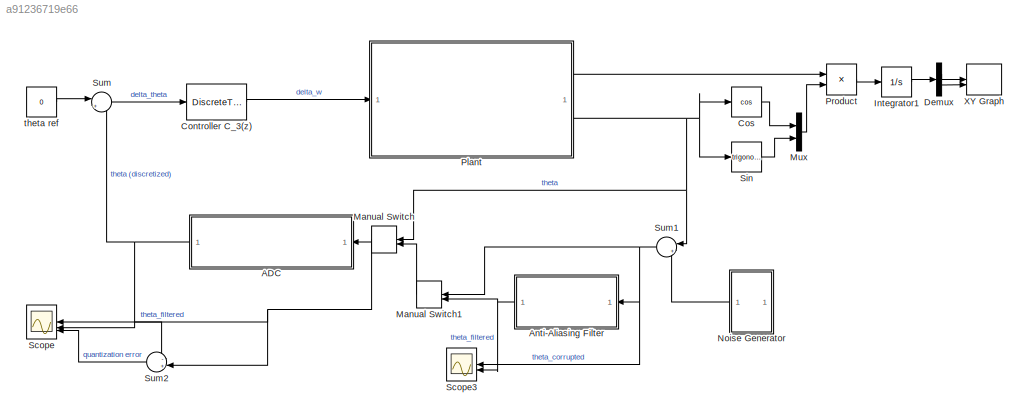
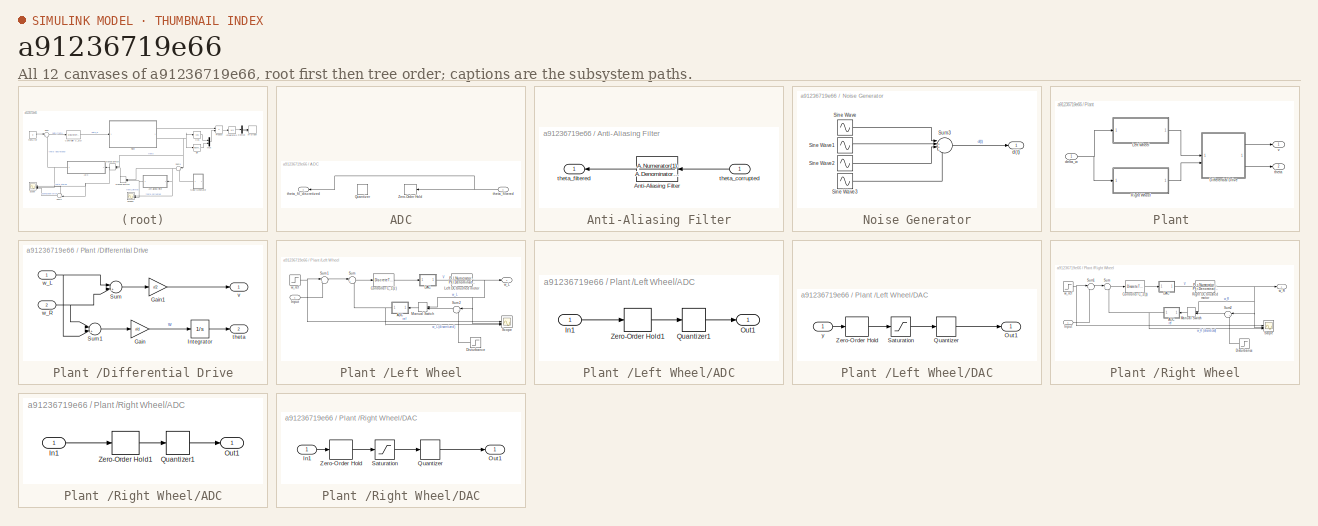
[diagram: thumbnail index - all 12 canvases of the model, root first then tree order]
MODEL slx_a91236719e66
KIND model
CONFIG AbsTol = auto
CONFIG EnableMultiTasking = off
CONFIG FixedStep = auto
CONFIG MaxStep = auto
CONFIG MinStep = auto
CONFIG RelTol = 1e-5
CONFIG SampleTimeConstraint = Unconstrained
CONFIG SolverName = VariableStepAuto
CONFIG StartTime = 0.0
CONFIG StopTime = 10
BLOCK [SubSystem] ADC
BLOCK [Quantizer] ADC/Quantizer
  QuantizationInterval = delta_q3
BLOCK [ZeroOrderHold] ADC/Zero-Order Hold
  SampleTime = Ts
BLOCK [Outport] ADC/theta_fil_discretized
BLOCK [Inport] ADC/theta_filtered
BLOCK [SubSystem] Anti-Aliasing Filter
BLOCK [TransferFcn] Anti-Aliasing Filter/Anti-Aliasing Filter
  Denominator = A.Denominator{1}
  Numerator = A.Numerator{1}
BLOCK [Inport] Anti-Aliasing Filter/theta_corrupted
BLOCK [Outport] Anti-Aliasing Filter/theta_filtered
BLOCK [DiscreteTransferFcn] Controller C_3(z)
  Denominator = D_C3
  InputPortMap = u0
  Numerator = N_C3
BLOCK [Trigonometry] Cos
  Operator = cos
BLOCK [Demux] Demux
  Outputs = 2
BLOCK [Integrator] Integrator1
BLOCK [ManualSwitch] Manual Switch
BLOCK [ManualSwitch] Manual Switch1
BLOCK [Mux] Mux
  DisplayOption = bar
  Inputs = 2
BLOCK [SubSystem] Noise Generator
  NameLocation = top
BLOCK [Sin] Noise Generator/Sine Wave
  Frequency = 5e5
  SampleTime = 0
BLOCK [Sin] Noise Generator/Sine Wave1
  Amplitude = 2
  Frequency = 1e4
  SampleTime = 0
BLOCK [Sin] Noise Generator/Sine Wave2
  Amplitude = -1
  Frequency = 1e6
  SampleTime = 0
BLOCK [Sin] Noise Generator/Sine Wave3
  Amplitude = 0.6
  Frequency = 6e3
  SampleTime = 0
BLOCK [Sum] Noise Generator/Sum3
  Inputs = |++++
BLOCK [Outport] Noise Generator/d(t)
BLOCK [SubSystem] Plant 
BLOCK [SubSystem] Plant /Differential Drive
BLOCK [Gain] Plant /Differential Drive/Gain
  Gain = r/d
BLOCK [Gain] Plant /Differential Drive/Gain1
  Gain = r/2
BLOCK [Integrator] Plant /Differential Drive/Integrator
  InitialCondition = pi/9
BLOCK [Sum] Plant /Differential Drive/Sum
  Inputs = |++|
BLOCK [Sum] Plant /Differential Drive/Sum1
  Inputs = |+-|
BLOCK [Outport] Plant /Differential Drive/theta
  Port = 2
BLOCK [Outport] Plant /Differential Drive/v
BLOCK [Inport] Plant /Differential Drive/w_L
BLOCK [Inport] Plant /Differential Drive/w_R
  Port = 2
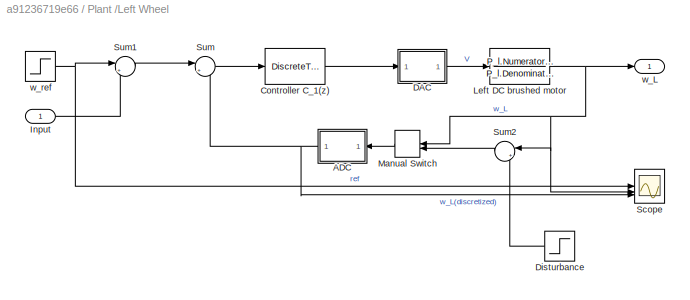
BLOCK [SubSystem] Plant /Left Wheel
BLOCK [SubSystem] Plant /Left Wheel/ADC
BLOCK [Inport] Plant /Left Wheel/ADC/In1
BLOCK [Outport] Plant /Left Wheel/ADC/Out1
BLOCK [Quantizer] Plant /Left Wheel/ADC/Quantizer1
  QuantizationInterval = delta_q2
BLOCK [ZeroOrderHold] Plant /Left Wheel/ADC/Zero-Order Hold1
  SampleTime = Ts
BLOCK [DiscreteTransferFcn] Plant /Left Wheel/Controller C_1(z)
  Denominator = D_C1
  InputPortMap = u0
  Numerator = N_C1
BLOCK [SubSystem] Plant /Left Wheel/DAC
BLOCK [Outport] Plant /Left Wheel/DAC/Out1
BLOCK [Quantizer] Plant /Left Wheel/DAC/Quantizer
  QuantizationInterval = delta_q1
BLOCK [Saturate] Plant /Left Wheel/DAC/Saturation
  LowerLimit = -Vbat
  UpperLimit = Vbat
BLOCK [ZeroOrderHold] Plant /Left Wheel/DAC/Zero-Order Hold
  SampleTime = Ts
BLOCK [Inport] Plant /Left Wheel/DAC/y
BLOCK [Step] Plant /Left Wheel/Disturbance 
  After = 0.005
  SampleTime = 0
  Time = 5
BLOCK [Inport] Plant /Left Wheel/Input
BLOCK [TransferFcn] Plant /Left Wheel/Left DC brushed motor
  Denominator = P_l.Denominator{1}
  Numerator = P_l.Numerator{1}
BLOCK [ManualSwitch] Plant /Left Wheel/Manual Switch
BLOCK [Scope] Plant /Left Wheel/Scope
  Floating = off
  NumInputPorts = 3
  ScopeSpecificationString = Simulink.scopes.TimeScopeBlockCfg('CurrentConfiguration', extmgr.ConfigurationSet(extmgr.Configuration('Core','General UI',true),extmgr.Configuration('Core','Source UI',true),extmgr.Configuration('Sources','WiredSimulink',true),extmgr.Configuration('Visuals','Time Domain',true,'SerializedDisplays',{struct('MinYLimReal','-0.625','MaxYLimReal','5.625','YLabelReal','','MinYLimMag','0.00000','MaxYLimM...<+2703ch>
BLOCK [Sum] Plant /Left Wheel/Sum
  Inputs = |+-
BLOCK [Sum] Plant /Left Wheel/Sum1
  Inputs = |+-
BLOCK [Sum] Plant /Left Wheel/Sum2
  Inputs = |++
  NameLocation = top
BLOCK [Outport] Plant /Left Wheel/w_L
BLOCK [Step] Plant /Left Wheel/w_ref
  After = w_ref
  SampleTime = Ts
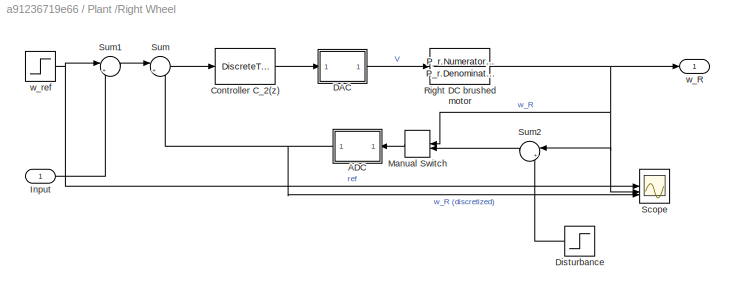
BLOCK [SubSystem] Plant /Right Wheel
BLOCK [SubSystem] Plant /Right Wheel/ADC
BLOCK [Inport] Plant /Right Wheel/ADC/In1
BLOCK [Outport] Plant /Right Wheel/ADC/Out1
BLOCK [Quantizer] Plant /Right Wheel/ADC/Quantizer1
  QuantizationInterval = delta_q2
BLOCK [ZeroOrderHold] Plant /Right Wheel/ADC/Zero-Order Hold1
  SampleTime = Ts
BLOCK [DiscreteTransferFcn] Plant /Right Wheel/Controller C_2(z)
  Denominator = D_C2
  InputPortMap = u0
  Numerator = N_C2
BLOCK [SubSystem] Plant /Right Wheel/DAC
BLOCK [Inport] Plant /Right Wheel/DAC/In1
BLOCK [Outport] Plant /Right Wheel/DAC/Out1
BLOCK [Quantizer] Plant /Right Wheel/DAC/Quantizer
  QuantizationInterval = delta_q1
BLOCK [Saturate] Plant /Right Wheel/DAC/Saturation
  LowerLimit = -Vbat
  UpperLimit = Vbat
BLOCK [ZeroOrderHold] Plant /Right Wheel/DAC/Zero-Order Hold
  SampleTime = Ts
BLOCK [Step] Plant /Right Wheel/Disturbance
  After = 0.001
  SampleTime = 0
  Time = 6
BLOCK [Inport] Plant /Right Wheel/Input
BLOCK [ManualSwitch] Plant /Right Wheel/Manual Switch
BLOCK [TransferFcn] Plant /Right Wheel/Right DC brushed motor
  Denominator = P_r.Denominator{1}
  Numerator = P_r.Numerator{1}
BLOCK [Scope] Plant /Right Wheel/Scope
  Floating = off
  NumInputPorts = 3
  ScopeSpecificationString = Simulink.scopes.TimeScopeBlockCfg('CurrentConfiguration', extmgr.ConfigurationSet(extmgr.Configuration('Core','General UI',true),extmgr.Configuration('Core','Source UI',true),extmgr.Configuration('Sources','WiredSimulink',true),extmgr.Configuration('Visuals','Time Domain',true,'SerializedDisplays',{struct('MinYLimReal','-0.625','MaxYLimReal','5.625','YLabelReal','','MinYLimMag','0.00000','MaxYLimM...<+2677ch>
BLOCK [Sum] Plant /Right Wheel/Sum
  Inputs = |+-
BLOCK [Sum] Plant /Right Wheel/Sum1
  Inputs = |++
BLOCK [Sum] Plant /Right Wheel/Sum2
  Inputs = |++
  NameLocation = top
BLOCK [Outport] Plant /Right Wheel/w_R
BLOCK [Step] Plant /Right Wheel/w_ref
  After = w_ref
  SampleTime = Ts
BLOCK [Inport] Plant /delta_w
BLOCK [Outport] Plant /theta
  Port = 2
BLOCK [Outport] Plant /v
BLOCK [Product] Product
BLOCK [Scope] Scope
  Floating = off
  NumInputPorts = 3
  ScopeSpecificationString = Simulink.scopes.TimeScopeBlockCfg('CurrentConfiguration', extmgr.ConfigurationSet(extmgr.Configuration('Core','General UI',true),extmgr.Configuration('Core','Source UI',true),extmgr.Configuration('Sources','WiredSimulink',true,'DataLoggingVariableName','ScopeData3'),extmgr.Configuration('Visuals','Time Domain',true,'SerializedDisplays',{struct('MinYLimReal','-31.07343','MaxYLimReal','283.15153','Y...<+2754ch>
BLOCK [Scope] Scope3
  Floating = off
  NumInputPorts = 2
  ScopeSpecificationString = Simulink.scopes.TimeScopeBlockCfg('CurrentConfiguration', extmgr.ConfigurationSet(extmgr.Configuration('Core','General UI',true),extmgr.Configuration('Core','Source UI',true),extmgr.Configuration('Sources','WiredSimulink',true,'DataLoggingVariableName','ScopeData1'),extmgr.Configuration('Visuals','Time Domain',true,'SerializedDisplays',{struct('MinYLimReal','-0.04416','MaxYLimReal','0.39276','YLab...<+1953ch>
BLOCK [Trigonometry] Sin
BLOCK [Sum] Sum
  Inputs = |+-
BLOCK [Sum] Sum1
  Inputs = |++
BLOCK [Sum] Sum2
  Inputs = -+|
BLOCK [Record] XY Graph
  CompatibilityTag = XY
  FileSettingsInternal = {"entries":[{"content":{"excelSettings":{"content":{},"type":"Streamout.ExcelSettings"}},"type":"Streamout.FileSettingStorage","uuid":""}],"packageUris":["http:\/\/schema.mathworks.com\/mf0\/streamout_blocks\/R2020a"],"version":"1.0"}
  Layout = [1 1]
  SignalsInternal = {"entries":[{"content":{"signals":[{"content":{"blockPath":[],"dimensions":[1],"domain":"","lineColor":"#a2142f","plots":[1],"port":1,"sid":[""],"signalID":14011,"signalName":"Demux:1"},"type":"RecordBlkView.Signal","uuid":""},{"content":{"blockPath":[],"dimensions":[1],"domain":"","lineColor":"#139fff","plots":[1],"port":2,"sid":[""],"signalID":14015,"signalName":"Demux:2"},"type":"RecordBlkView....<+164ch>
  VisualizationBindings = {"xyplotplugin":{"info":[{"series":[{"bindingParametersList":[{"parameter":"X-Axis","signalID":14011,"signalName":"Demux:1"},{"parameter":"Y-Axis","signalID":14015,"signalName":"Demux:2"}],"seriesID":1069}],"subplotID":1}]}}
BLOCK [Constant] theta ref
  SampleTime = Ts
  Value = 0
NET ADC/theta_filtered:1 -> ADC/Zero-Order Hold:1, ADC/theta_fil_discretized:1
NET ADC:1 -> Scope:2, Sum2:1, Sum:2
LINE Anti-Aliasing Filter/Anti-Aliasing Filter:1 -> Anti-Aliasing Filter/theta_filtered:1
LINE Anti-Aliasing Filter/theta_corrupted:1 -> Anti-Aliasing Filter/Anti-Aliasing Filter:1
NET Anti-Aliasing Filter:1 -> Manual Switch1:2, Scope3:2
LINE Controller C_3(z):1 -> Plant :1
LINE Cos:1 -> Mux:1
LINE Demux:1 -> XY Graph:1
LINE Demux:2 -> XY Graph:2
LINE Integrator1:1 -> Demux:1
LINE Manual Switch1:1 -> Manual Switch:2
NET Manual Switch:1 -> ADC:1, Scope:1, Sum2:2
LINE Mux:1 -> Product:2
LINE Noise Generator/Sine Wave1:1 -> Noise Generator/Sum3:2
LINE Noise Generator/Sine Wave2:1 -> Noise Generator/Sum3:3
LINE Noise Generator/Sine Wave3:1 -> Noise Generator/Sum3:4
LINE Noise Generator/Sine Wave:1 -> Noise Generator/Sum3:1
LINE Noise Generator/Sum3:1 -> Noise Generator/d(t):1
LINE Noise Generator:1 -> Sum1:2
LINE Plant /Differential Drive/Gain1:1 -> Plant /Differential Drive/v:1
LINE Plant /Differential Drive/Gain:1 -> Plant /Differential Drive/Integrator:1
LINE Plant /Differential Drive/Integrator:1 -> Plant /Differential Drive/theta:1
LINE Plant /Differential Drive/Sum1:1 -> Plant /Differential Drive/Gain:1
LINE Plant /Differential Drive/Sum:1 -> Plant /Differential Drive/Gain1:1
NET Plant /Differential Drive/w_L:1 -> Plant /Differential Drive/Sum1:2, Plant /Differential Drive/Sum:1
NET Plant /Differential Drive/w_R:1 -> Plant /Differential Drive/Sum1:1, Plant /Differential Drive/Sum:2
LINE Plant /Differential Drive:1 -> Plant /v:1
LINE Plant /Differential Drive:2 -> Plant /theta:1
LINE Plant /Left Wheel/ADC/In1:1 -> Plant /Left Wheel/ADC/Zero-Order Hold1:1
LINE Plant /Left Wheel/ADC/Quantizer1:1 -> Plant /Left Wheel/ADC/Out1:1
LINE Plant /Left Wheel/ADC/Zero-Order Hold1:1 -> Plant /Left Wheel/ADC/Quantizer1:1
NET Plant /Left Wheel/ADC:1 -> Plant /Left Wheel/Scope:3, Plant /Left Wheel/Sum:2
LINE Plant /Left Wheel/Controller C_1(z):1 -> Plant /Left Wheel/DAC:1
LINE Plant /Left Wheel/DAC/Quantizer:1 -> Plant /Left Wheel/DAC/Out1:1
LINE Plant /Left Wheel/DAC/Saturation:1 -> Plant /Left Wheel/DAC/Quantizer:1
LINE Plant /Left Wheel/DAC/Zero-Order Hold:1 -> Plant /Left Wheel/DAC/Saturation:1
LINE Plant /Left Wheel/DAC/y:1 -> Plant /Left Wheel/DAC/Zero-Order Hold:1
LINE Plant /Left Wheel/DAC:1 -> Plant /Left Wheel/Left DC brushed motor:1
LINE Plant /Left Wheel/Disturbance :1 -> Plant /Left Wheel/Sum2:2
LINE Plant /Left Wheel/Input:1 -> Plant /Left Wheel/Sum1:2
NET Plant /Left Wheel/Left DC brushed motor:1 -> Plant /Left Wheel/Manual Switch:1, Plant /Left Wheel/Scope:2, Plant /Left Wheel/Sum2:1, Plant /Left Wheel/w_L:1
LINE Plant /Left Wheel/Manual Switch:1 -> Plant /Left Wheel/ADC:1
LINE Plant /Left Wheel/Sum1:1 -> Plant /Left Wheel/Sum:1
LINE Plant /Left Wheel/Sum2:1 -> Plant /Left Wheel/Manual Switch:2
LINE Plant /Left Wheel/Sum:1 -> Plant /Left Wheel/Controller C_1(z):1
NET Plant /Left Wheel/w_ref:1 -> Plant /Left Wheel/Scope:1, Plant /Left Wheel/Sum1:1
LINE Plant /Left Wheel:1 -> Plant /Differential Drive:1
LINE Plant /Right Wheel/ADC/In1:1 -> Plant /Right Wheel/ADC/Zero-Order Hold1:1
LINE Plant /Right Wheel/ADC/Quantizer1:1 -> Plant /Right Wheel/ADC/Out1:1
LINE Plant /Right Wheel/ADC/Zero-Order Hold1:1 -> Plant /Right Wheel/ADC/Quantizer1:1
NET Plant /Right Wheel/ADC:1 -> Plant /Right Wheel/Scope:3, Plant /Right Wheel/Sum:2
LINE Plant /Right Wheel/Controller C_2(z):1 -> Plant /Right Wheel/DAC:1
LINE Plant /Right Wheel/DAC/In1:1 -> Plant /Right Wheel/DAC/Zero-Order Hold:1
LINE Plant /Right Wheel/DAC/Quantizer:1 -> Plant /Right Wheel/DAC/Out1:1
LINE Plant /Right Wheel/DAC/Saturation:1 -> Plant /Right Wheel/DAC/Quantizer:1
LINE Plant /Right Wheel/DAC/Zero-Order Hold:1 -> Plant /Right Wheel/DAC/Saturation:1
LINE Plant /Right Wheel/DAC:1 -> Plant /Right Wheel/Right DC brushed motor:1
LINE Plant /Right Wheel/Disturbance:1 -> Plant /Right Wheel/Sum2:2
LINE Plant /Right Wheel/Input:1 -> Plant /Right Wheel/Sum1:2
LINE Plant /Right Wheel/Manual Switch:1 -> Plant /Right Wheel/ADC:1
NET Plant /Right Wheel/Right DC brushed motor:1 -> Plant /Right Wheel/Manual Switch:1, Plant /Right Wheel/Scope:2, Plant /Right Wheel/Sum2:1, Plant /Right Wheel/w_R:1
LINE Plant /Right Wheel/Sum1:1 -> Plant /Right Wheel/Sum:1
LINE Plant /Right Wheel/Sum2:1 -> Plant /Right Wheel/Manual Switch:2
LINE Plant /Right Wheel/Sum:1 -> Plant /Right Wheel/Controller C_2(z):1
NET Plant /Right Wheel/w_ref:1 -> Plant /Right Wheel/Scope:1, Plant /Right Wheel/Sum1:1
LINE Plant /Right Wheel:1 -> Plant /Differential Drive:2
NET Plant /delta_w:1 -> Plant /Left Wheel:1, Plant /Right Wheel:1
LINE Plant :1 -> Product:1
NET Plant :2 -> Cos:1, Manual Switch:1, Sin:1, Sum1:1
LINE Product:1 -> Integrator1:1
LINE Sin:1 -> Mux:2
NET Sum1:1 -> Anti-Aliasing Filter:1, Manual Switch1:1, Scope3:1
LINE Sum2:1 -> Scope:3
LINE Sum:1 -> Controller C_3(z):1
LINE theta ref:1 -> Sum:1
note: NET lines group one-source signal fan-out (src -> all destinations, sorted); 1:1 wires keep LINE
